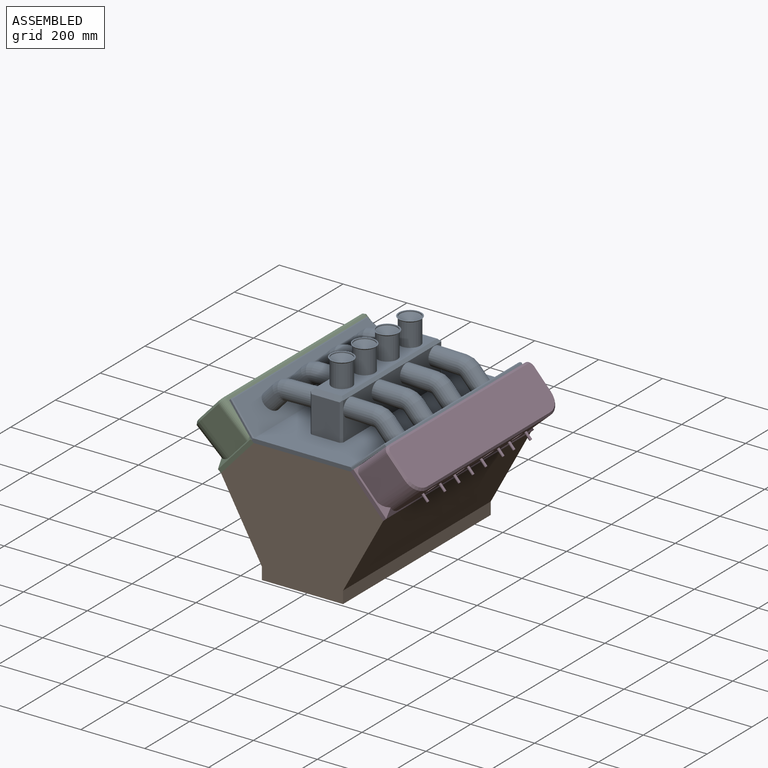
[diagram: assembled view]
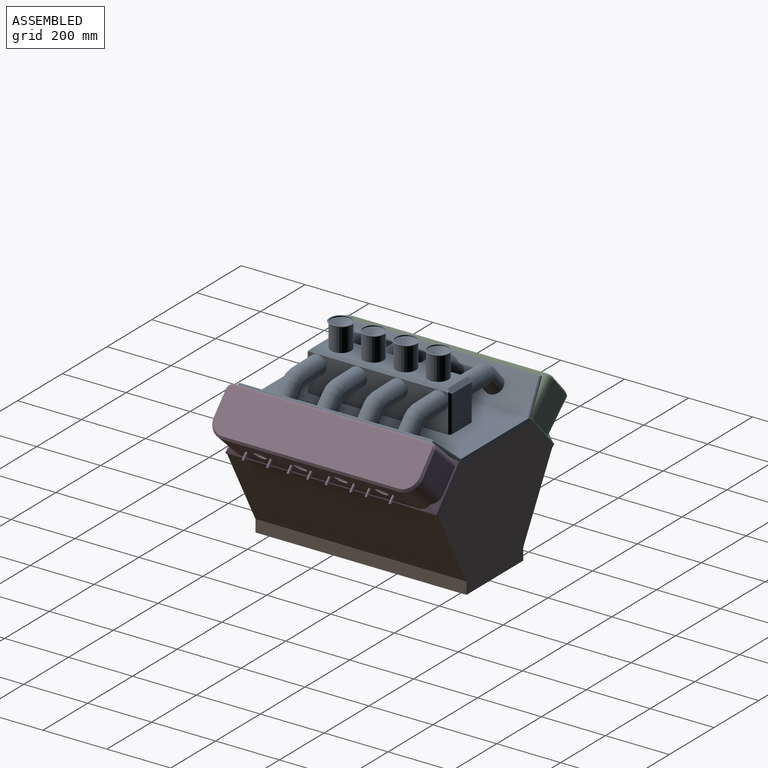
[diagram: assembled view, second angle]
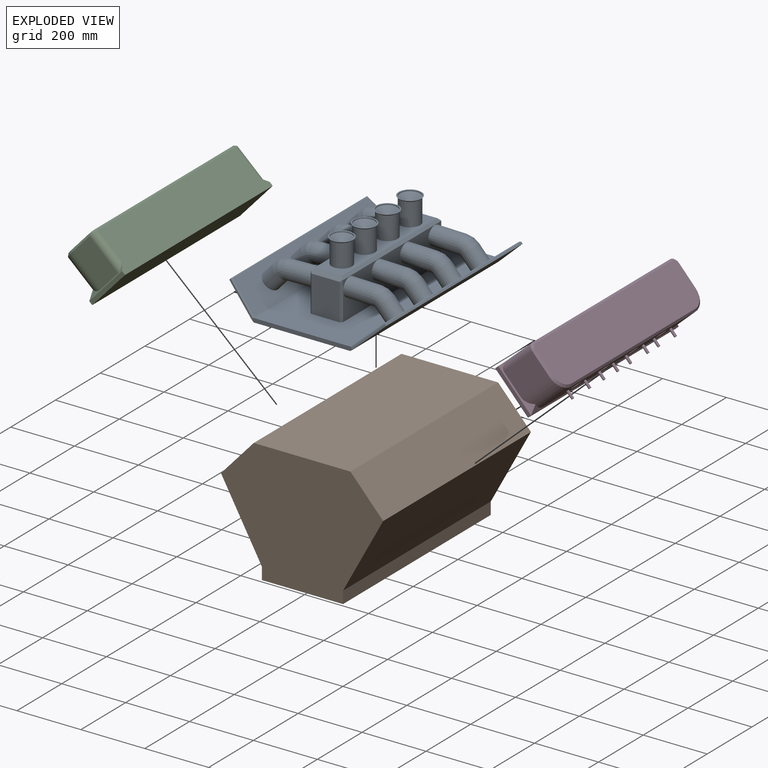
[diagram: exploded view]
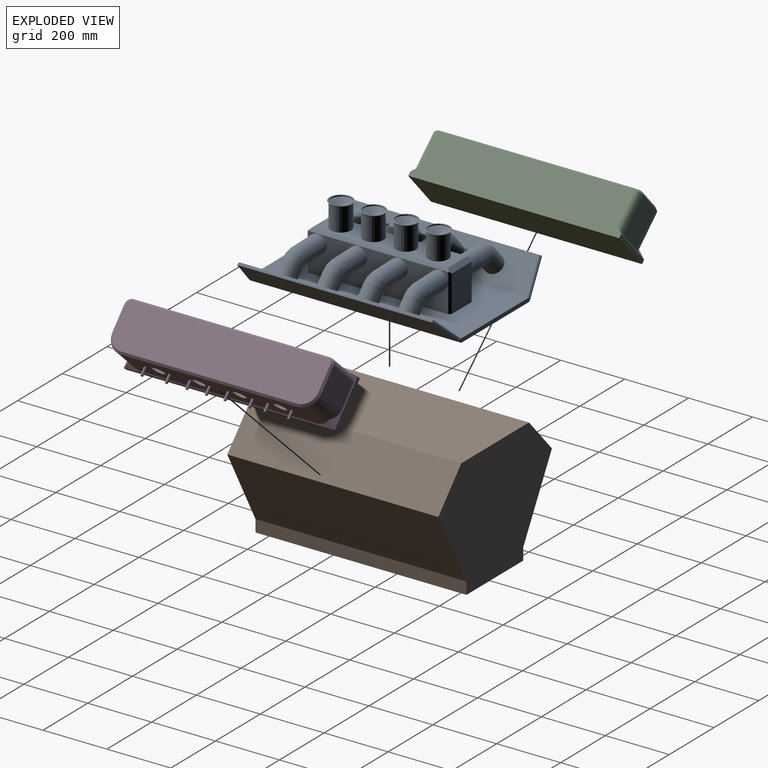
[diagram: exploded view, second angle]
ASSEMBLY  parts=4 mates=3
PART A: 77 faces, bbox 494.1x663.1x218.6 mm
  f0: cylinder r=31.75mm len=72.07mm, axis (0,0,-1), area 14377.8mm2, adj f34,f66
  f1: cylinder r=31.75mm len=72.07mm, axis (0,0,-1), area 14377.8mm2, adj f34,f65
  f2: cylinder r=31.75mm len=72.07mm, axis (0,0,-1), area 14377.8mm2, adj f34,f67
  f3: cylinder r=31.75mm len=72.07mm, axis (0,0,-1), area 14377.8mm2, adj f34,f68
  f4: plane 653.91x85.84mm, normal (0.67,0,0.74), area 62844.8mm2, adj f12,f35,f36,f37,f38,f47,f48,f49
  f5: plane 609.6x4.59mm, normal (-0.74,0,0.67), area 3784.4mm2, adj f6,f16,f17,f48
  f6: plane 660.4x94.51mm, normal (-0.67,0,-0.74), area 81449.6mm2, adj f5,f7,f11,f13,f16,f17
  f7: plane 315.03x12.7mm, normal (0,1,0), area 3920.6mm2, adj f6,f8,f12,f13,f15,f17
  f8: plane 660.4x94.51mm, normal (0.67,0,-0.74), area 81449.6mm2, adj f7,f9,f11,f13,f14,f15
  f9: plane 609.6x4.59mm, normal (0.74,0,0.67), area 3784.4mm2, adj f8,f14,f15,f51
  f10: plane 653.91x85.84mm, normal (-0.67,0,0.74), area 62844.8mm2, adj f12,f18,f19,f20,f21,f50,f51,f52
  f11: plane 315.03x12.7mm, normal (0,-1,0), area 3920.6mm2, adj f6,f8,f12,f13,f14,f16
  f12: plane 660.4x311.81mm, normal (0,0,1), area 154001.2mm2, adj f4,f7,f10,f11,f14,f15,f16,f17
  f13: plane 660.4x302.39mm, normal (0,0,-1), area 199696.4mm2, adj f6,f7,f8,f11
  f14: plane 94.51x85.03mm, normal (0.15,-0.98,0.14), area 763.3mm2, adj f8,f9,f11,f12,f52
  f15: plane 94.51x85.03mm, normal (0.15,0.98,0.14), area 763.3mm2, adj f7,f8,f9,f12,f50
  f16: plane 94.51x85.03mm, normal (-0.15,-0.98,0.14), area 763.3mm2, adj f5,f6,f11,f12,f49
  f17: plane 94.51x85.03mm, normal (-0.15,0.98,0.14), area 763.3mm2, adj f5,f6,f7,f12,f47
  f18: cylinder r=28.57mm len=76.46mm, axis (0.67,0,-0.74), area 9120.7mm2, adj f10,f22
  f19: cylinder r=28.57mm len=76.46mm, axis (0.67,0,-0.74), area 9120.7mm2, adj f10,f23
  f20: cylinder r=28.57mm len=76.46mm, axis (0.67,0,-0.74), area 9120.7mm2, adj f10,f25
  f21: cylinder r=28.57mm len=76.46mm, axis (0.67,0,-0.74), area 9120.7mm2, adj f10,f24
  f22: torus R=28.57mm, axis (0,1,0), area 4143.1mm2, adj f18,f26
  f23: torus R=28.57mm, axis (0,1,0), area 4143.1mm2, adj f19,f27
  f24: torus R=28.57mm, axis (0,1,0), area 4143.1mm2, adj f21,f28
  f25: torus R=28.57mm, axis (0,1,0), area 4143.1mm2, adj f20,f29
  f26: cylinder r=28.57mm len=91.17mm, axis (1,0,-0.02), area 16070.1mm2, adj f22,f32
  f27: cylinder r=28.57mm len=90.5mm, axis (1,0,-0.02), area 16009.3mm2, adj f23,f32
  f28: cylinder r=28.57mm len=91.17mm, axis (1,0,-0.02), area 16070.1mm2, adj f24,f32
  f29: cylinder r=28.57mm len=90.5mm, axis (1,0,-0.02), area 16009.3mm2, adj f25,f32
  f30: plane 440.86x121.45mm, normal (-1,0,0), area 41764.4mm2, adj f12,f43,f44,f45,f46,f53,f55,f56
  f31: plane 114.3x88.9mm, normal (0,-1,0), area 10161.3mm2, adj f12,f56,f57,f59
  f32: plane 440.86x121.45mm, normal (1,0,0), area 41764.4mm2, adj f12,f26,f27,f28,f29,f54,f57,f58
  f33: plane 114.3x88.9mm, normal (0,1,0), area 10161.3mm2, adj f12,f55,f58,f60
  f34: plane 425.45x85.09mm, normal (0,0,1), area 23533.9mm2, adj f0,f1,f2,f3,f53,f54,f59,f60
  f35: cylinder r=28.57mm len=76.46mm, axis (-0.67,0,-0.74), area 9120.7mm2, adj f4,f39
  f36: cylinder r=28.57mm len=76.46mm, axis (-0.67,0,-0.74), area 9120.7mm2, adj f4,f42
  f37: cylinder r=28.57mm len=76.46mm, axis (-0.67,0,-0.74), area 9120.7mm2, adj f4,f40
  f38: cylinder r=28.57mm len=76.46mm, axis (-0.67,0,-0.74), area 9120.7mm2, adj f4,f41
  f39: torus R=28.57mm, axis (0,-1,0), area 3911.2mm2, adj f35,f43
  f40: torus R=28.57mm, axis (0,-1,0), area 4143.1mm2, adj f37,f44
  f41: torus R=28.57mm, axis (0,-1,0), area 3776.7mm2, adj f38,f45
  f42: torus R=28.57mm, axis (0,-1,0), area 4143.1mm2, adj f36,f46
  f43: cylinder r=28.57mm len=91.17mm, axis (-1,0,-0.02), area 16130.9mm2, adj f30,f39
  f44: cylinder r=28.57mm len=90.5mm, axis (-1,0,-0.02), area 16009.3mm2, adj f30,f40
  f45: cylinder r=28.57mm len=91.17mm, axis (-1,0,-0.02), area 16130.9mm2, adj f30,f41
  f46: cylinder r=28.57mm len=90.5mm, axis (-1,0,-0.02), area 16009.3mm2, adj f30,f42
  f47: plane 90.33x78.3mm, normal (0.37,0.69,0.62), area 532.7mm2, adj f4,f12,f17,f48
  f48: plane 609.6x4.49mm, normal (-0.05,0,1), area 2725.6mm2, adj f4,f5,f47,f49
  f49: plane 90.33x78.3mm, normal (0.37,-0.69,0.62), area 532.7mm2, adj f4,f12,f16,f48
  f50: plane 90.33x78.3mm, normal (-0.37,0.69,0.62), area 532.7mm2, adj f10,f12,f15,f51
  f51: plane 609.6x4.49mm, normal (0.05,0,1), area 2725.6mm2, adj f9,f10,f50,f52
  f52: plane 90.33x78.3mm, normal (-0.37,-0.69,0.62), area 532.7mm2, adj f10,f12,f14,f51
  f53: plane 440.06x8.26mm, normal (-0.71,0,0.71), area 5060.7mm2, adj f30,f34,f55,f56,f59,f60
  f54: plane 440.06x8.26mm, normal (0.71,0,0.71), area 5060.7mm2, adj f32,f34,f57,f58,f59,f60
  f55: plane 119.7x6.35mm, normal (-0.71,0.71,0), area 1053.7mm2, adj f12,f30,f33,f53,f60
  f56: plane 119.7x6.35mm, normal (-0.71,-0.71,0), area 1053.7mm2, adj f12,f30,f31,f53,f59
  f57: plane 119.7x6.35mm, normal (0.71,-0.71,0), area 1053.7mm2, adj f12,f31,f32,f54,f59
  f58: plane 119.7x6.35mm, normal (0.71,0.71,0), area 1053.7mm2, adj f12,f32,f33,f54,f60
  f59: plane 99.7x12.7mm, normal (0,-0.71,0.71), area 1674mm2, adj f31,f34,f53,f54,f56,f57
  f60: plane 99.7x12.7mm, normal (0,0.71,0.71), area 1674mm2, adj f33,f34,f53,f54,f55,f58
  f61: plane 71.76x71.76mm, normal (0,0,1), area 876.9mm2, adj f68,f76
  f62: plane 71.76x71.76mm, normal (0,0,1), area 876.9mm2, adj f67,f74
  f63: plane 71.76x71.76mm, normal (0,0,1), area 876.9mm2, adj f65,f72
  f64: plane 71.76x71.76mm, normal (0,0,1), area 876.9mm2, adj f66,f70
  f65: cone r=35.88mm half-angle=45deg, axis (0,0,1), area 1240.2mm2, adj f1,f63
  f66: cone r=35.88mm half-angle=45deg, axis (0,0,1), area 1240.2mm2, adj f0,f64
  f67: cone r=35.88mm half-angle=45deg, axis (0,0,1), area 1240.2mm2, adj f2,f62
  f68: cone r=35.88mm half-angle=45deg, axis (0,0,1), area 1240.2mm2, adj f3,f61
  f69: cone r=0mm half-angle=59deg, axis (0,0,1), area 3694.6mm2, adj f70
  f70: cylinder r=31.75mm len=63.5mm, axis (0,0,1), area 633.4mm2, adj f64,f69
  f71: cone r=0mm half-angle=59deg, axis (0,0,1), area 3694.6mm2, adj f72
  f72: cylinder r=31.75mm len=63.5mm, axis (0,0,1), area 633.4mm2, adj f63,f71
  f73: cone r=0mm half-angle=59deg, axis (0,0,1), area 3694.6mm2, adj f74
  f74: cylinder r=31.75mm len=63.5mm, axis (0,0,1), area 633.4mm2, adj f62,f73
  f75: cone r=0mm half-angle=59deg, axis (0,0,1), area 3694.6mm2, adj f76
  f76: cylinder r=31.75mm len=63.5mm, axis (0,0,1), area 633.4mm2, adj f61,f75
PART B: 10 faces, bbox 507.8x660.4x381 mm
  f0: plane 660.4x302.39mm, normal (0,0,1), area 199696.1mm2, adj f1,f7,f8,f9
  f1: plane 660.4x112.6mm, normal (-0.74,0,0.67), area 100645mm2, adj f0,f2,f8,f9
  f2: plane 660.4x230.3mm, normal (-0.87,0,-0.49), area 174038.1mm2, adj f1,f3,f8,f9
  f3: plane 660.4x38.1mm, normal (-1,0,0), area 25161.2mm2, adj f2,f4,f8,f9
  f4: plane 660.4x254mm, normal (0,0,-1), area 167741.6mm2, adj f3,f5,f8,f9
  f5: plane 660.4x38.1mm, normal (1,0,0), area 25161.2mm2, adj f4,f6,f8,f9
  f6: plane 660.4x230.3mm, normal (0.88,0,-0.48), area 173269mm2, adj f5,f7,f8,f9
  f7: plane 660.4x112.6mm, normal (0.74,0,0.67), area 100645mm2, adj f0,f6,f8,f9
  f8: plane 507.79x381mm, normal (0,-1,0), area 143010.8mm2, adj f0,f1,f2,f3,f4,f5,f6,f7
  f9: plane 507.79x381mm, normal (0,1,0), area 143010.8mm2, adj f0,f1,f2,f3,f4,f5,f6,f7
PART C: 76 faces, bbox 660.4x174.6x142.9 mm
  f0: plane 660.4x12.7mm, normal (0,-1,0), area 8387.1mm2, adj f1,f3,f4,f10
  f1: plane 152.4x12.7mm, normal (1,0,0), area 1935.5mm2, adj f0,f2,f4,f9
  f2: plane 660.4x136.53mm, normal (0,1,0), area 85151mm2, adj f1,f3,f4,f9,f11,f14,f15,f18
  f3: plane 152.4x12.7mm, normal (-1,0,0), area 1935.5mm2, adj f0,f2,f4,f11
  f4: plane 660.4x152.4mm, normal (0,0,-1), area 100645mm2, adj f0,f1,f2,f3
  f5: plane 120.65x79.38mm, normal (1,0,0), area 9576.6mm2, adj f9,f13,f14,f22
  f6: plane 120.65x79.38mm, normal (-1,0,0), area 9576.6mm2, adj f11,f12,f15,f17
  f7: plane 552.45x120.65mm, normal (0,-1,0), area 61664.6mm2, adj f10,f12,f13,f21,f48,f50,f52,f54
  f8: plane 641.35x136.53mm, normal (0,0,1), area 86643.1mm2, adj f16,f17,f18,f19,f20,f21,f22,f23
  f9: plane 152.4x22.23mm, normal (0.71,0,0.71), area 1178.9mm2, adj f1,f2,f5,f10,f13,f14
  f10: plane 660.4x18.05mm, normal (0,-0.71,0.71), area 3734.2mm2, adj f0,f7,f9,f11,f12,f13
  f11: plane 152.4x22.23mm, normal (-0.71,0,0.71), area 1178.9mm2, adj f2,f3,f6,f10,f12,f15
  f12: cylinder r=50.8mm len=120.65mm, axis (0,0,-1), area 9223.4mm2, adj f6,f7,f10,f11,f19
  f13: cylinder r=50.8mm len=120.65mm, axis (0,0,-1), area 9223.4mm2, adj f5,f7,f9,f10,f23
  f14: cylinder r=19.05mm len=120.65mm, axis (0,0,1), area 3403.1mm2, adj f2,f5,f9,f20
  f15: cylinder r=19.05mm len=120.65mm, axis (0,0,1), area 3403.1mm2, adj f2,f6,f11,f16
  f16: cone r=12.7mm half-angle=45deg, axis (0,0,-1), area 223.9mm2, adj f8,f15,f17,f18
  f17: plane 79.38x6.35mm, normal (-0.71,0,0.71), area 712.8mm2, adj f6,f8,f16,f19
  f18: plane 615.95x6.35mm, normal (0,0.71,0.71), area 5531.4mm2, adj f2,f8,f16,f20
  f19: cone r=44.45mm half-angle=45deg, axis (0,0,-1), area 671.8mm2, adj f8,f12,f17,f21
  f20: cone r=12.7mm half-angle=45deg, axis (0,0,-1), area 223.9mm2, adj f8,f14,f18,f22
  f21: plane 552.45x6.35mm, normal (0,-0.71,0.71), area 4961.1mm2, adj f7,f8,f19,f23
  f22: plane 79.38x6.35mm, normal (0.71,0,0.71), area 712.8mm2, adj f5,f8,f20,f23
  f23: cone r=44.45mm half-angle=45deg, axis (0,0,-1), area 671.8mm2, adj f8,f13,f21,f22
  f24: plane 552.45x120.65mm, normal (0,1,0), area 60445.9mm2, adj f34,f36,f37,f45,f72,f73,f74,f75
  f25: plane 654.05x8.21mm, normal (0,1,0), area 5369.7mm2, adj f26,f28,f29,f34
  f26: plane 146.05x8.21mm, normal (-1,0,0), area 1199.1mm2, adj f25,f27,f29,f33
  f27: plane 654.05x132.04mm, normal (0,-1,0), area 82002.6mm2, adj f26,f28,f29,f33,f35,f38,f39,f42
  f28: plane 146.05x8.21mm, normal (1,0,0), area 1199.1mm2, adj f25,f27,f29,f35
  f29: plane 654.05x146.05mm, normal (0,0,1), area 95524mm2, adj f25,f26,f27,f28
  f30: plane 120.65x79.38mm, normal (-1,0,0), area 9576.6mm2, adj f33,f37,f38,f46
  f31: plane 120.65x79.38mm, normal (1,0,0), area 9576.6mm2, adj f35,f36,f39,f41
  f32: plane 638.72x133.89mm, normal (0,0,-1), area 84667mm2, adj f40,f41,f42,f43,f44,f45,f46,f47
  f33: plane 146.05x19.05mm, normal (-0.71,0,-0.71), area 1069.3mm2, adj f26,f27,f30,f34,f37,f38
  f34: plane 654.05x17.12mm, normal (0,0.71,-0.71), area 3610.9mm2, adj f24,f25,f33,f35,f36,f37
  f35: plane 146.05x19.05mm, normal (0.71,0,-0.71), area 1069.3mm2, adj f27,f28,f31,f34,f36,f39
  f36: cylinder r=47.62mm len=120.65mm, axis (0,0,-1), area 8670.6mm2, adj f24,f31,f34,f35,f43
  f37: cylinder r=47.62mm len=120.65mm, axis (0,0,-1), area 8670.6mm2, adj f24,f30,f33,f34,f47
  f38: cylinder r=15.88mm len=120.65mm, axis (0,0,1), area 2864.7mm2, adj f27,f30,f33,f44
  f39: cylinder r=15.88mm len=120.65mm, axis (0,0,1), area 2864.7mm2, adj f27,f31,f35,f40
  f40: cone r=10.45mm half-angle=45deg, axis (0,0,-1), area 136mm2, adj f32,f39,f41,f42
  f41: plane 79.38x4.49mm, normal (0.71,0,-0.71), area 504mm2, adj f31,f32,f40,f43
  f42: plane 615.95x4.49mm, normal (0,-0.71,-0.71), area 3911.3mm2, adj f27,f32,f40,f44
  f43: cone r=42.2mm half-angle=45deg, axis (0,0,-1), area 452.6mm2, adj f32,f36,f41,f45
  f44: cone r=10.45mm half-angle=45deg, axis (0,0,-1), area 136mm2, adj f32,f38,f42,f46
  f45: plane 552.45x4.49mm, normal (0,0.71,-0.71), area 3508.1mm2, adj f24,f32,f43,f47
  f46: plane 79.38x4.49mm, normal (-0.71,0,-0.71), area 504mm2, adj f30,f32,f44,f47
  f47: cone r=42.2mm half-angle=45deg, axis (0,0,-1), area 452.6mm2, adj f32,f37,f45,f46
  f48: cylinder r=4.13mm len=24.13mm, axis (0,1,0), area 625.8mm2, adj f7,f66
  f49: plane 5.72x5.72mm, normal (0,-1,0), area 25.7mm2, adj f66
  f50: cylinder r=4.13mm len=24.13mm, axis (0,1,0), area 625.8mm2, adj f7,f67
  f51: plane 5.72x5.72mm, normal (0,-1,0), area 25.7mm2, adj f67
  f52: cylinder r=4.13mm len=24.13mm, axis (0,1,0), area 625.8mm2, adj f7,f65
  f53: plane 5.72x5.72mm, normal (0,-1,0), area 25.7mm2, adj f65
  f54: cylinder r=4.13mm len=24.13mm, axis (0,1,0), area 625.8mm2, adj f7,f70
  f55: plane 5.72x5.72mm, normal (0,-1,0), area 25.7mm2, adj f70
  f56: cylinder r=4.13mm len=24.13mm, axis (0,1,0), area 625.8mm2, adj f7,f71
  f57: plane 5.72x5.72mm, normal (0,-1,0), area 25.7mm2, adj f71
  f58: cylinder r=4.13mm len=24.13mm, axis (0,1,0), area 625.8mm2, adj f7,f64
  f59: plane 5.72x5.72mm, normal (0,-1,0), area 25.7mm2, adj f64
  f60: cylinder r=4.13mm len=24.13mm, axis (0,1,0), area 625.8mm2, adj f7,f68
  f61: plane 5.72x5.72mm, normal (0,-1,0), area 25.7mm2, adj f68
  f62: cylinder r=4.13mm len=24.13mm, axis (0,1,0), area 625.8mm2, adj f7,f69
  f63: plane 5.72x5.72mm, normal (0,-1,0), area 25.7mm2, adj f69
  f64: torus R=2.86mm, axis (0,-1,0), area 46mm2, adj f58,f59
  f65: torus R=2.86mm, axis (0,-1,0), area 46mm2, adj f52,f53
  f66: torus R=2.86mm, axis (0,-1,0), area 46mm2, adj f48,f49
  f67: torus R=2.86mm, axis (0,-1,0), area 46mm2, adj f50,f51
  f68: torus R=2.86mm, axis (0,-1,0), area 46mm2, adj f60,f61
  f69: torus R=2.86mm, axis (0,-1,0), area 46mm2, adj f62,f63
  f70: torus R=2.86mm, axis (0,-1,0), area 46mm2, adj f54,f55
  f71: torus R=2.86mm, axis (0,-1,0), area 46mm2, adj f56,f57
  f72: torus R=22.23mm, axis (0,-1,0), area 633.1mm2, adj f7,f24
  f73: torus R=22.23mm, axis (0,-1,0), area 633.1mm2, adj f7,f24
  f74: torus R=22.23mm, axis (0,-1,0), area 633.1mm2, adj f7,f24
  f75: torus R=22.23mm, axis (0,-1,0), area 633.1mm2, adj f7,f24
PART D: same geometry as C
PLACE A t=(6.7,-290.51,-214.12)mm
PLACE B t=(7.91,39.69,-326.71)mm
PLACE C rot(axis=(0.37,-0.37,-0.85),99.4deg) t=(-195.85,-290.51,-270.41)mm
PLACE D rot(axis=(0.37,0.37,0.85),99.4deg) t=(209.24,-290.51,-270.41)mm
MATE fastened D.f4 <-> B.f7  axis (-0.74,0,-0.67) through (209.24,-290.51,-270.41)mm
MATE fastened A.f13 <-> B.f0  axis (0,0,-1) through (6.7,-290.51,-214.12)mm
MATE fastened C.f4 <-> B.f1  axis (0.74,0,-0.67) through (-195.85,-290.51,-270.41)mm
